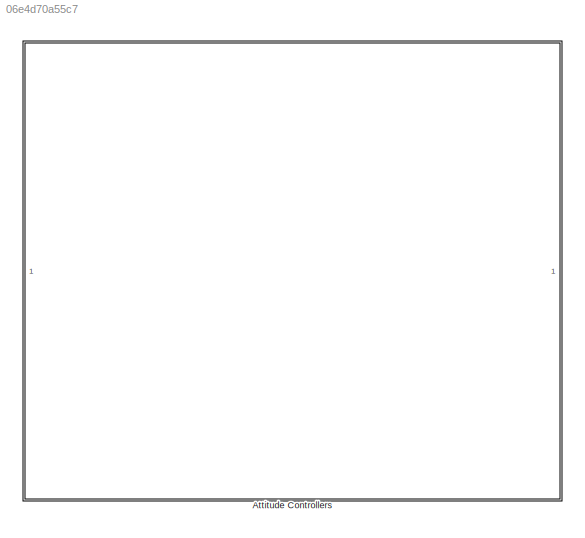
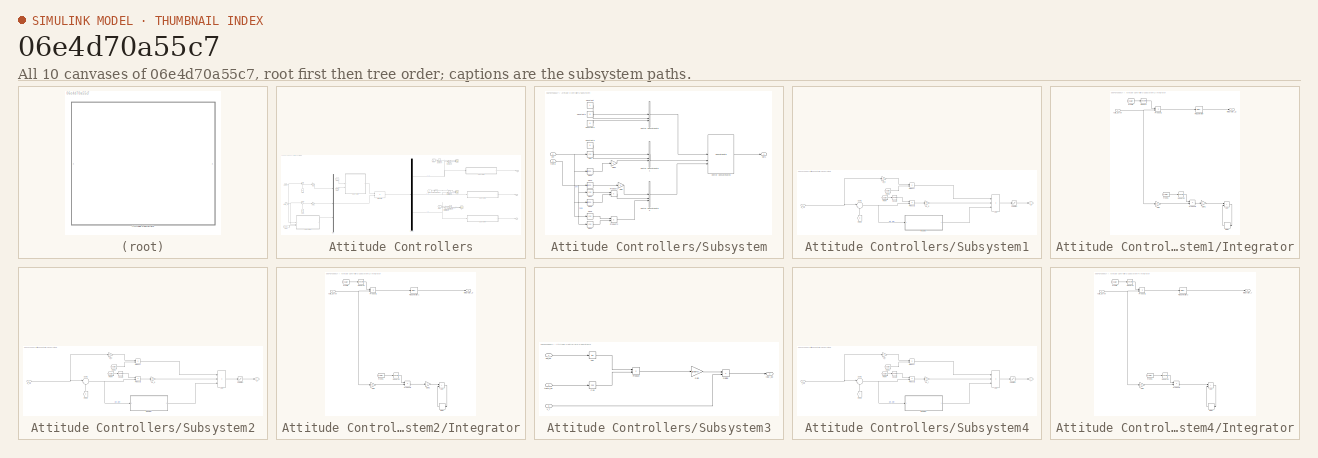
[diagram: thumbnail index - all 10 canvases of the model, root first then tree order]
MODEL slx_06e4d70a55c7
KIND model
CONFIG AbsTol = auto
CONFIG EnableMultiTasking = off
CONFIG FixedStep = auto
CONFIG MaxStep = auto
CONFIG MinStep = auto
CONFIG RelTol = 1e-3
CONFIG SampleTimeConstraint = Unconstrained
CONFIG SolverName = VariableStepAuto
CONFIG StartTime = 0.0
CONFIG StopTime = 10.0
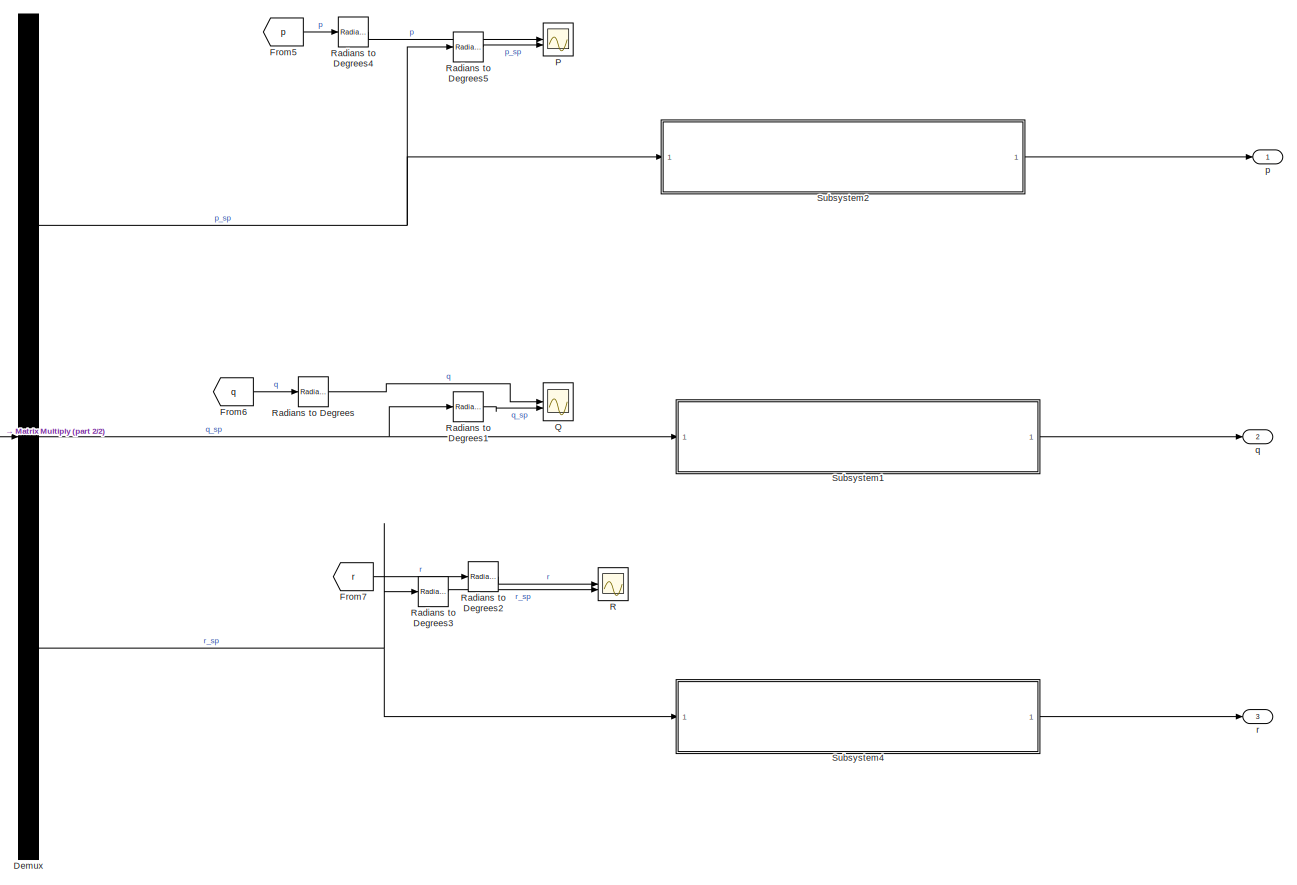
[diagram: Attitude Controllers - part 1/2, right side, full height]
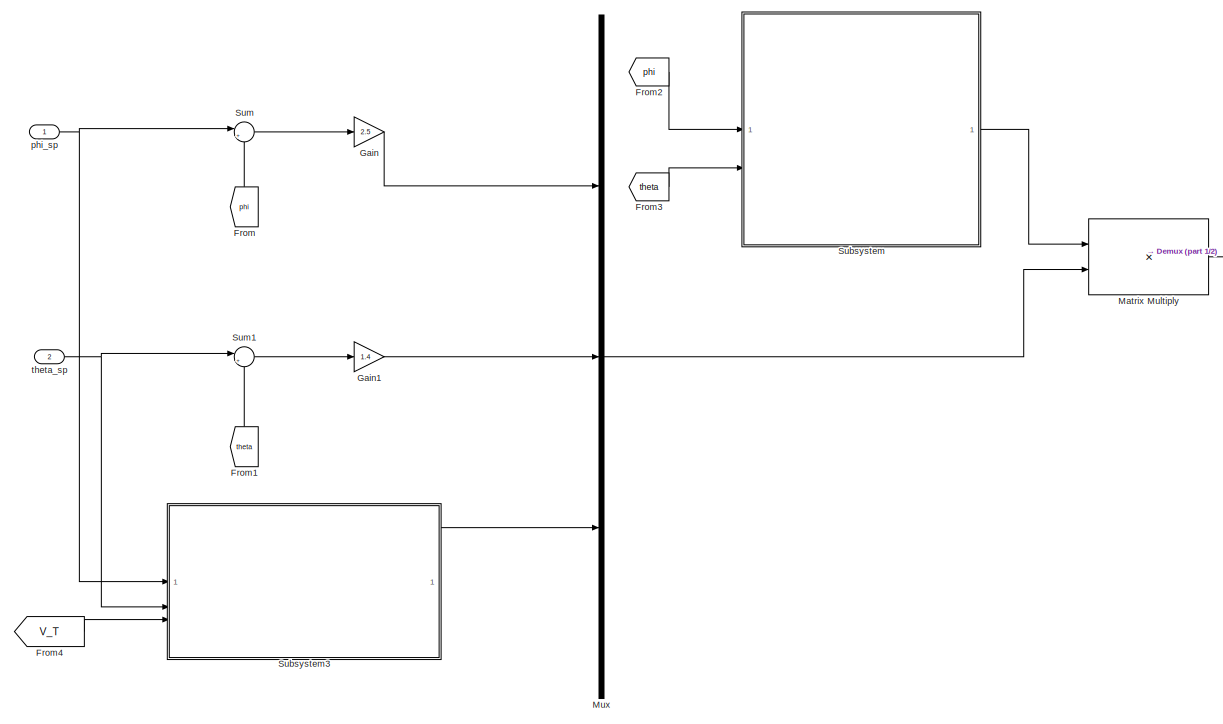
[diagram: Attitude Controllers - part 2/2, left side, full height]
BLOCK [SubSystem] Attitude Controllers
BLOCK [Demux] Attitude Controllers/Demux
  Outputs = 3
BLOCK [From] Attitude Controllers/From
  GotoTag = phi
  NameLocation = right
  TagVisibility = global
BLOCK [From] Attitude Controllers/From1
  GotoTag = theta
  NameLocation = right
  TagVisibility = global
BLOCK [From] Attitude Controllers/From2
  GotoTag = phi
  TagVisibility = global
BLOCK [From] Attitude Controllers/From3
  GotoTag = theta
  TagVisibility = global
BLOCK [From] Attitude Controllers/From4
  GotoTag = V_T
  TagVisibility = global
BLOCK [From] Attitude Controllers/From5
  GotoTag = p
  TagVisibility = global
BLOCK [From] Attitude Controllers/From6
  GotoTag = q
  TagVisibility = global
BLOCK [From] Attitude Controllers/From7
  GotoTag = r
  TagVisibility = global
BLOCK [Gain] Attitude Controllers/Gain
  Gain = 2.5
BLOCK [Gain] Attitude Controllers/Gain1
  Gain = 1.4
BLOCK [Product] Attitude Controllers/Matrix Multiply
  Multiplication = Matrix(*)
BLOCK [Mux] Attitude Controllers/Mux
  DisplayOption = bar
  Inputs = 3
BLOCK [Scope] Attitude Controllers/P
  Floating = off
  NumInputPorts = 2
  ScopeSpecificationString = Simulink.scopes.TimeScopeBlockCfg('CurrentConfiguration', extmgr.ConfigurationSet(extmgr.Configuration('Core','General UI',true,'FigureColor',[1 1 1]),extmgr.Configuration('Core','Source UI',true),extmgr.Configuration('Sources','WiredSimulink',true,'DataLoggingVariableName','ScopeData3'),extmgr.Configuration('Visuals','Time Domain',true,'SerializedDisplays',{struct('MinYLimReal','-1.00000','MaxYLi...<+2327ch>
BLOCK [Scope] Attitude Controllers/Q
  Floating = off
  NumInputPorts = 2
  ScopeSpecificationString = Simulink.scopes.TimeScopeBlockCfg('CurrentConfiguration', extmgr.ConfigurationSet(extmgr.Configuration('Core','General UI',true,'FigureColor',[1 1 1]),extmgr.Configuration('Core','Source UI',true),extmgr.Configuration('Sources','WiredSimulink',true,'DataLoggingVariableName','ScopeData4'),extmgr.Configuration('Visuals','Time Domain',true,'SerializedDisplays',{struct('MinYLimReal','-13.76624','MaxYL...<+2333ch>
BLOCK [Scope] Attitude Controllers/R
  Floating = off
  NumInputPorts = 2
  ScopeSpecificationString = Simulink.scopes.TimeScopeBlockCfg('CurrentConfiguration', extmgr.ConfigurationSet(extmgr.Configuration('Core','General UI',true,'FigureColor',[1 1 1]),extmgr.Configuration('Core','Source UI',true),extmgr.Configuration('Sources','WiredSimulink',true,'DataLoggingVariableName','ScopeData5'),extmgr.Configuration('Visuals','Time Domain',true,'SerializedDisplays',{struct('MinYLimReal','-1.53695','MaxYLi...<+2647ch>
BLOCK [Reference] Attitude Controllers/Radians to Degrees  REF=simulink_extras/Transformations/Radians
to Degrees
  SourceBlock = simulink_extras/Transformations/Radians\nto Degrees
  SourceType = RadiansToDegrees
BLOCK [Reference] Attitude Controllers/Radians to Degrees1  REF=simulink_extras/Transformations/Radians
to Degrees
  SourceBlock = simulink_extras/Transformations/Radians\nto Degrees
  SourceType = RadiansToDegrees
BLOCK [Reference] Attitude Controllers/Radians to Degrees2  REF=simulink_extras/Transformations/Radians
to Degrees
  SourceBlock = simulink_extras/Transformations/Radians\nto Degrees
  SourceType = RadiansToDegrees
BLOCK [Reference] Attitude Controllers/Radians to Degrees3  REF=simulink_extras/Transformations/Radians
to Degrees
  SourceBlock = simulink_extras/Transformations/Radians\nto Degrees
  SourceType = RadiansToDegrees
BLOCK [Reference] Attitude Controllers/Radians to Degrees4  REF=simulink_extras/Transformations/Radians
to Degrees
  SourceBlock = simulink_extras/Transformations/Radians\nto Degrees
  SourceType = RadiansToDegrees
BLOCK [Reference] Attitude Controllers/Radians to Degrees5  REF=simulink_extras/Transformations/Radians
to Degrees
  SourceBlock = simulink_extras/Transformations/Radians\nto Degrees
  SourceType = RadiansToDegrees
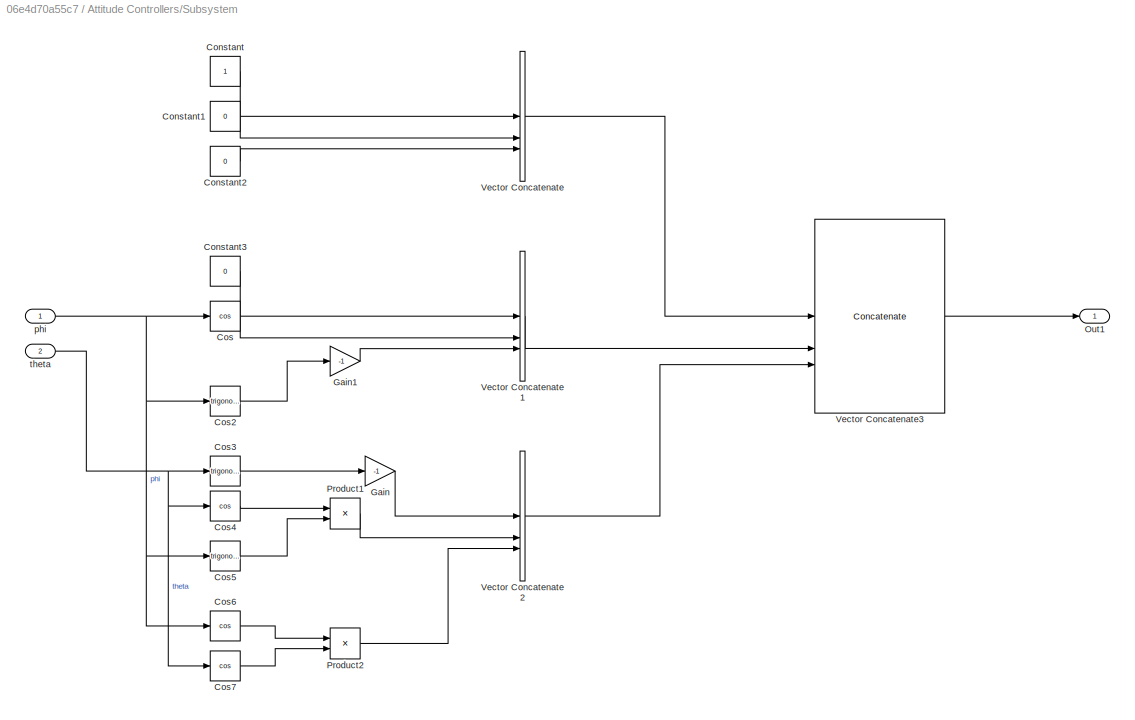
BLOCK [SubSystem] Attitude Controllers/Subsystem
BLOCK [Constant] Attitude Controllers/Subsystem/Constant
BLOCK [Constant] Attitude Controllers/Subsystem/Constant1
  Value = 0
BLOCK [Constant] Attitude Controllers/Subsystem/Constant2
  Value = 0
BLOCK [Constant] Attitude Controllers/Subsystem/Constant3
  Value = 0
BLOCK [Trigonometry] Attitude Controllers/Subsystem/Cos
  Operator = cos
BLOCK [Trigonometry] Attitude Controllers/Subsystem/Cos2
BLOCK [Trigonometry] Attitude Controllers/Subsystem/Cos3
BLOCK [Trigonometry] Attitude Controllers/Subsystem/Cos4
  Operator = cos
BLOCK [Trigonometry] Attitude Controllers/Subsystem/Cos5
BLOCK [Trigonometry] Attitude Controllers/Subsystem/Cos6
  Operator = cos
BLOCK [Trigonometry] Attitude Controllers/Subsystem/Cos7
  Operator = cos
BLOCK [Gain] Attitude Controllers/Subsystem/Gain
  Gain = -1
BLOCK [Gain] Attitude Controllers/Subsystem/Gain1
  Gain = -1
BLOCK [Outport] Attitude Controllers/Subsystem/Out1
BLOCK [Product] Attitude Controllers/Subsystem/Product1
BLOCK [Product] Attitude Controllers/Subsystem/Product2
BLOCK [Concatenate] Attitude Controllers/Subsystem/Vector Concatenate
  NumInputs = 3
BLOCK [Concatenate] Attitude Controllers/Subsystem/Vector Concatenate1
  NumInputs = 3
BLOCK [Concatenate] Attitude Controllers/Subsystem/Vector Concatenate2
  NumInputs = 3
BLOCK [Concatenate] Attitude Controllers/Subsystem/Vector Concatenate3
  ConcatenateDimension = 2
  Mode = Multidimensional array
  NumInputs = 3
BLOCK [Inport] Attitude Controllers/Subsystem/phi
BLOCK [Inport] Attitude Controllers/Subsystem/theta
  Port = 2
BLOCK [SubSystem] Attitude Controllers/Subsystem1
BLOCK [Sum] Attitude Controllers/Subsystem1/Add
  IconShape = rectangular
  Inputs = +++
BLOCK [From] Attitude Controllers/Subsystem1/From2
  GotoTag = q
  NameLocation = right
  TagVisibility = global
BLOCK [From] Attitude Controllers/Subsystem1/From3
  GotoTag = scalar
  TagVisibility = global
BLOCK [From] Attitude Controllers/Subsystem1/From4
  GotoTag = scalar
  TagVisibility = global
BLOCK [SubSystem] Attitude Controllers/Subsystem1/Integrator
BLOCK [Sum] Attitude Controllers/Subsystem1/Integrator/Add
  Commented = on
  IconShape = rectangular
BLOCK [Delay] Attitude Controllers/Subsystem1/Integrator/Delay
  Commented = on
  DelayLength = 1
  InputPortMap = u0
  NameLocation = top
BLOCK [From] Attitude Controllers/Subsystem1/Integrator/From1
  Commented = on
  GotoTag = scalar
  TagVisibility = global
BLOCK [From] Attitude Controllers/Subsystem1/Integrator/From5
  GotoTag = scalar
  TagVisibility = global
BLOCK [Gain] Attitude Controllers/Subsystem1/Integrator/Gain
  Commented = on
  Gain = .02
BLOCK [Gain] Attitude Controllers/Subsystem1/Integrator/Gain1
  Commented = on
  Gain = .1
BLOCK [Outport] Attitude Controllers/Subsystem1/Integrator/Integrator_Q
BLOCK [Reference] Attitude Controllers/Subsystem1/Integrator/PID Controller  REF=slpidlib/PID Controller
  SourceBlock = slpidlib/PID Controller
  SourceType = PID 1dof
BLOCK [Product] Attitude Controllers/Subsystem1/Integrator/Product1
BLOCK [Product] Attitude Controllers/Subsystem1/Integrator/Product2
  Commented = on
BLOCK [Math] Attitude Controllers/Subsystem1/Integrator/Square
  Operator = square
BLOCK [Math] Attitude Controllers/Subsystem1/Integrator/Square2
  Commented = on
  Operator = square
BLOCK [Inport] Attitude Controllers/Subsystem1/Integrator/rate_Error
BLOCK [Gain] Attitude Controllers/Subsystem1/Kff_q
  Gain = 1.3
BLOCK [Gain] Attitude Controllers/Subsystem1/Kp_q
  Gain = 3.5
BLOCK [Product] Attitude Controllers/Subsystem1/Product
BLOCK [Product] Attitude Controllers/Subsystem1/Product2
BLOCK [Saturate] Attitude Controllers/Subsystem1/Saturation
  LowerLimit = -1
  UpperLimit = 1
BLOCK [Math] Attitude Controllers/Subsystem1/Square
  Operator = square
BLOCK [Sum] Attitude Controllers/Subsystem1/Sum2
  Inputs = |+-
BLOCK [Outport] Attitude Controllers/Subsystem1/q
BLOCK [Inport] Attitude Controllers/Subsystem1/q_sp
BLOCK [SubSystem] Attitude Controllers/Subsystem2
BLOCK [Sum] Attitude Controllers/Subsystem2/Add
  IconShape = rectangular
  Inputs = +++
BLOCK [From] Attitude Controllers/Subsystem2/From2
  GotoTag = p
  NameLocation = right
  TagVisibility = global
BLOCK [From] Attitude Controllers/Subsystem2/From3
  GotoTag = scalar
  TagVisibility = global
BLOCK [From] Attitude Controllers/Subsystem2/From4
  GotoTag = scalar
  TagVisibility = global
BLOCK [SubSystem] Attitude Controllers/Subsystem2/Integrator
BLOCK [Sum] Attitude Controllers/Subsystem2/Integrator/Add
  Commented = on
  IconShape = rectangular
BLOCK [Delay] Attitude Controllers/Subsystem2/Integrator/Delay
  Commented = on
  DelayLength = 1
  InputPortMap = u0
  NameLocation = top
BLOCK [From] Attitude Controllers/Subsystem2/Integrator/From1
  Commented = on
  GotoTag = scalar
  TagVisibility = global
BLOCK [From] Attitude Controllers/Subsystem2/Integrator/From5
  GotoTag = scalar
  TagVisibility = global
BLOCK [Gain] Attitude Controllers/Subsystem2/Integrator/Gain
  Commented = on
  Gain = .02
BLOCK [Gain] Attitude Controllers/Subsystem2/Integrator/Gain1
  Commented = on
  Gain = .1
BLOCK [Outport] Attitude Controllers/Subsystem2/Integrator/Integrator_p
BLOCK [Reference] Attitude Controllers/Subsystem2/Integrator/PID Controller1  REF=slpidlib/PID Controller
  SourceBlock = slpidlib/PID Controller
  SourceType = PID 1dof
BLOCK [Product] Attitude Controllers/Subsystem2/Integrator/Product1
BLOCK [Product] Attitude Controllers/Subsystem2/Integrator/Product2
  Commented = on
BLOCK [Math] Attitude Controllers/Subsystem2/Integrator/Square1
  Operator = square
BLOCK [Math] Attitude Controllers/Subsystem2/Integrator/Square2
  Commented = on
  Operator = square
BLOCK [Inport] Attitude Controllers/Subsystem2/Integrator/rate_Error
BLOCK [Gain] Attitude Controllers/Subsystem2/Kff_p
  Gain = 0.1
BLOCK [Gain] Attitude Controllers/Subsystem2/Kp_p
  Gain = .18
BLOCK [Product] Attitude Controllers/Subsystem2/Product
BLOCK [Product] Attitude Controllers/Subsystem2/Product2
BLOCK [Saturate] Attitude Controllers/Subsystem2/Saturation
  LowerLimit = -1
  UpperLimit = 1
BLOCK [Math] Attitude Controllers/Subsystem2/Square
  Operator = square
BLOCK [Sum] Attitude Controllers/Subsystem2/Sum2
  Inputs = |+-
BLOCK [Outport] Attitude Controllers/Subsystem2/p
BLOCK [Inport] Attitude Controllers/Subsystem2/p_sp
BLOCK [SubSystem] Attitude Controllers/Subsystem3
BLOCK [Trigonometry] Attitude Controllers/Subsystem3/Cos
  Operator = cos
BLOCK [Product] Attitude Controllers/Subsystem3/Divide
  Inputs = */
BLOCK [Gain] Attitude Controllers/Subsystem3/Gain
  Gain = gravity
BLOCK [Product] Attitude Controllers/Subsystem3/Product
BLOCK [Trigonometry] Attitude Controllers/Subsystem3/Tan
  Operator = tan
BLOCK [Inport] Attitude Controllers/Subsystem3/phi_sp
BLOCK [Inport] Attitude Controllers/Subsystem3/theta_sp
  Port = 2
BLOCK [Inport] Attitude Controllers/Subsystem3/v_T
  Port = 3
BLOCK [Outport] Attitude Controllers/Subsystem3/yaw_sp
BLOCK [SubSystem] Attitude Controllers/Subsystem4
BLOCK [Sum] Attitude Controllers/Subsystem4/Add
  IconShape = rectangular
  Inputs = +++
BLOCK [From] Attitude Controllers/Subsystem4/From2
  GotoTag = r
  NameLocation = right
  TagVisibility = global
BLOCK [From] Attitude Controllers/Subsystem4/From3
  GotoTag = scalar
  TagVisibility = global
BLOCK [From] Attitude Controllers/Subsystem4/From4
  GotoTag = scalar
  TagVisibility = global
BLOCK [SubSystem] Attitude Controllers/Subsystem4/Integrator
BLOCK [Sum] Attitude Controllers/Subsystem4/Integrator/Add
  Commented = on
  IconShape = rectangular
BLOCK [Delay] Attitude Controllers/Subsystem4/Integrator/Delay
  Commented = on
  DelayLength = 1
  InputPortMap = u0
  NameLocation = top
BLOCK [From] Attitude Controllers/Subsystem4/Integrator/From1
  Commented = on
  GotoTag = scalar
BLOCK [From] Attitude Controllers/Subsystem4/Integrator/From5
  GotoTag = scalar
  TagVisibility = global
BLOCK [Gain] Attitude Controllers/Subsystem4/Integrator/Gain
  Commented = on
  Gain = .02
BLOCK [Outport] Attitude Controllers/Subsystem4/Integrator/Integrator_r
BLOCK [Reference] Attitude Controllers/Subsystem4/Integrator/PID Controller2  REF=slpidlib/PID Controller
  SourceBlock = slpidlib/PID Controller
  SourceType = PID 1dof
BLOCK [Product] Attitude Controllers/Subsystem4/Integrator/Product1
BLOCK [Product] Attitude Controllers/Subsystem4/Integrator/Product2
  Commented = on
BLOCK [Math] Attitude Controllers/Subsystem4/Integrator/Square1
  Operator = square
BLOCK [Math] Attitude Controllers/Subsystem4/Integrator/Square2
  Commented = on
  Operator = square
BLOCK [Inport] Attitude Controllers/Subsystem4/Integrator/rate_Error
BLOCK [Gain] Attitude Controllers/Subsystem4/Kff_r
  Gain = 0
BLOCK [Gain] Attitude Controllers/Subsystem4/Kp_r
  Gain = .01
BLOCK [Product] Attitude Controllers/Subsystem4/Product
BLOCK [Product] Attitude Controllers/Subsystem4/Product2
BLOCK [Saturate] Attitude Controllers/Subsystem4/Saturation
  LowerLimit = -1
  UpperLimit = 1
BLOCK [Math] Attitude Controllers/Subsystem4/Square
  Operator = square
BLOCK [Sum] Attitude Controllers/Subsystem4/Sum2
  Inputs = |+-
BLOCK [Outport] Attitude Controllers/Subsystem4/r
BLOCK [Inport] Attitude Controllers/Subsystem4/r_sp
BLOCK [Sum] Attitude Controllers/Sum
  Inputs = |+-
BLOCK [Sum] Attitude Controllers/Sum1
  Inputs = |+-
BLOCK [Outport] Attitude Controllers/p
BLOCK [Inport] Attitude Controllers/phi_sp
BLOCK [Outport] Attitude Controllers/q
  Port = 2
BLOCK [Outport] Attitude Controllers/r
  Port = 3
BLOCK [Inport] Attitude Controllers/theta_sp
  Port = 2
NET Attitude Controllers/Demux:1 -> Attitude Controllers/Radians to Degrees5:1, Attitude Controllers/Subsystem2:1
NET Attitude Controllers/Demux:2 -> Attitude Controllers/Radians to Degrees1:1, Attitude Controllers/Subsystem1:1
NET Attitude Controllers/Demux:3 -> Attitude Controllers/Radians to Degrees3:1, Attitude Controllers/Subsystem4:1
LINE Attitude Controllers/From1:1 -> Attitude Controllers/Sum1:2
LINE Attitude Controllers/From2:1 -> Attitude Controllers/Subsystem:1
LINE Attitude Controllers/From3:1 -> Attitude Controllers/Subsystem:2
LINE Attitude Controllers/From4:1 -> Attitude Controllers/Subsystem3:3
LINE Attitude Controllers/From5:1 -> Attitude Controllers/Radians to Degrees4:1
LINE Attitude Controllers/From6:1 -> Attitude Controllers/Radians to Degrees:1
LINE Attitude Controllers/From7:1 -> Attitude Controllers/Radians to Degrees2:1
LINE Attitude Controllers/From:1 -> Attitude Controllers/Sum:2
LINE Attitude Controllers/Gain1:1 -> Attitude Controllers/Mux:2
LINE Attitude Controllers/Gain:1 -> Attitude Controllers/Mux:1
LINE Attitude Controllers/Matrix Multiply:1 -> Attitude Controllers/Demux:1
LINE Attitude Controllers/Mux:1 -> Attitude Controllers/Matrix Multiply:2
LINE Attitude Controllers/Radians to Degrees1:1 -> Attitude Controllers/Q:2
LINE Attitude Controllers/Radians to Degrees2:1 -> Attitude Controllers/R:1
LINE Attitude Controllers/Radians to Degrees3:1 -> Attitude Controllers/R:2
LINE Attitude Controllers/Radians to Degrees4:1 -> Attitude Controllers/P:1
LINE Attitude Controllers/Radians to Degrees5:1 -> Attitude Controllers/P:2
LINE Attitude Controllers/Radians to Degrees:1 -> Attitude Controllers/Q:1
LINE Attitude Controllers/Subsystem/Constant1:1 -> Attitude Controllers/Subsystem/Vector Concatenate:2
LINE Attitude Controllers/Subsystem/Constant2:1 -> Attitude Controllers/Subsystem/Vector Concatenate:3
LINE Attitude Controllers/Subsystem/Constant3:1 -> Attitude Controllers/Subsystem/Vector Concatenate1:1
LINE Attitude Controllers/Subsystem/Constant:1 -> Attitude Controllers/Subsystem/Vector Concatenate:1
LINE Attitude Controllers/Subsystem/Cos2:1 -> Attitude Controllers/Subsystem/Gain1:1
LINE Attitude Controllers/Subsystem/Cos3:1 -> Attitude Controllers/Subsystem/Gain:1
LINE Attitude Controllers/Subsystem/Cos4:1 -> Attitude Controllers/Subsystem/Product1:1
LINE Attitude Controllers/Subsystem/Cos5:1 -> Attitude Controllers/Subsystem/Product1:2
LINE Attitude Controllers/Subsystem/Cos6:1 -> Attitude Controllers/Subsystem/Product2:1
LINE Attitude Controllers/Subsystem/Cos7:1 -> Attitude Controllers/Subsystem/Product2:2
LINE Attitude Controllers/Subsystem/Cos:1 -> Attitude Controllers/Subsystem/Vector Concatenate1:2
LINE Attitude Controllers/Subsystem/Gain1:1 -> Attitude Controllers/Subsystem/Vector Concatenate1:3
LINE Attitude Controllers/Subsystem/Gain:1 -> Attitude Controllers/Subsystem/Vector Concatenate2:1
LINE Attitude Controllers/Subsystem/Product1:1 -> Attitude Controllers/Subsystem/Vector Concatenate2:2
LINE Attitude Controllers/Subsystem/Product2:1 -> Attitude Controllers/Subsystem/Vector Concatenate2:3
LINE Attitude Controllers/Subsystem/Vector Concatenate1:1 -> Attitude Controllers/Subsystem/Vector Concatenate3:2
LINE Attitude Controllers/Subsystem/Vector Concatenate2:1 -> Attitude Controllers/Subsystem/Vector Concatenate3:3
LINE Attitude Controllers/Subsystem/Vector Concatenate3:1 -> Attitude Controllers/Subsystem/Out1:1
LINE Attitude Controllers/Subsystem/Vector Concatenate:1 -> Attitude Controllers/Subsystem/Vector Concatenate3:1
NET Attitude Controllers/Subsystem/phi:1 -> Attitude Controllers/Subsystem/Cos2:1, Attitude Controllers/Subsystem/Cos5:1, Attitude Controllers/Subsystem/Cos6:1, Attitude Controllers/Subsystem/Cos:1
NET Attitude Controllers/Subsystem/theta:1 -> Attitude Controllers/Subsystem/Cos3:1, Attitude Controllers/Subsystem/Cos4:1, Attitude Controllers/Subsystem/Cos7:1
LINE Attitude Controllers/Subsystem1/Add:1 -> Attitude Controllers/Subsystem1/Saturation:1
LINE Attitude Controllers/Subsystem1/From2:1 -> Attitude Controllers/Subsystem1/Sum2:2
LINE Attitude Controllers/Subsystem1/From3:1 -> Attitude Controllers/Subsystem1/Product:2
LINE Attitude Controllers/Subsystem1/From4:1 -> Attitude Controllers/Subsystem1/Square:1
LINE Attitude Controllers/Subsystem1/Integrator/Add:1 -> Attitude Controllers/Subsystem1/Integrator/Delay:1
LINE Attitude Controllers/Subsystem1/Integrator/Delay:1 -> Attitude Controllers/Subsystem1/Integrator/Add:2
LINE Attitude Controllers/Subsystem1/Integrator/From1:1 -> Attitude Controllers/Subsystem1/Integrator/Square2:1
LINE Attitude Controllers/Subsystem1/Integrator/From5:1 -> Attitude Controllers/Subsystem1/Integrator/Square:1
LINE Attitude Controllers/Subsystem1/Integrator/Gain1:1 -> Attitude Controllers/Subsystem1/Integrator/Add:1
LINE Attitude Controllers/Subsystem1/Integrator/Gain:1 -> Attitude Controllers/Subsystem1/Integrator/Product2:2
LINE Attitude Controllers/Subsystem1/Integrator/PID Controller:1 -> Attitude Controllers/Subsystem1/Integrator/Integrator_Q:1
LINE Attitude Controllers/Subsystem1/Integrator/Product1:1 -> Attitude Controllers/Subsystem1/Integrator/PID Controller:1
LINE Attitude Controllers/Subsystem1/Integrator/Product2:1 -> Attitude Controllers/Subsystem1/Integrator/Gain1:1
LINE Attitude Controllers/Subsystem1/Integrator/Square2:1 -> Attitude Controllers/Subsystem1/Integrator/Product2:1
LINE Attitude Controllers/Subsystem1/Integrator/Square:1 -> Attitude Controllers/Subsystem1/Integrator/Product1:1
NET Attitude Controllers/Subsystem1/Integrator/rate_Error:1 -> Attitude Controllers/Subsystem1/Integrator/Gain:1, Attitude Controllers/Subsystem1/Integrator/Product1:2
LINE Attitude Controllers/Subsystem1/Integrator:1 -> Attitude Controllers/Subsystem1/Add:3
LINE Attitude Controllers/Subsystem1/Kff_q:1 -> Attitude Controllers/Subsystem1/Product:1
LINE Attitude Controllers/Subsystem1/Kp_q:1 -> Attitude Controllers/Subsystem1/Add:2
LINE Attitude Controllers/Subsystem1/Product2:1 -> Attitude Controllers/Subsystem1/Kp_q:1
LINE Attitude Controllers/Subsystem1/Product:1 -> Attitude Controllers/Subsystem1/Add:1
LINE Attitude Controllers/Subsystem1/Saturation:1 -> Attitude Controllers/Subsystem1/q:1
LINE Attitude Controllers/Subsystem1/Square:1 -> Attitude Controllers/Subsystem1/Product2:1
NET Attitude Controllers/Subsystem1/Sum2:1 -> Attitude Controllers/Subsystem1/Integrator:1, Attitude Controllers/Subsystem1/Product2:2
NET Attitude Controllers/Subsystem1/q_sp:1 -> Attitude Controllers/Subsystem1/Kff_q:1, Attitude Controllers/Subsystem1/Sum2:1
LINE Attitude Controllers/Subsystem1:1 -> Attitude Controllers/q:1
LINE Attitude Controllers/Subsystem2/Add:1 -> Attitude Controllers/Subsystem2/Saturation:1
LINE Attitude Controllers/Subsystem2/From2:1 -> Attitude Controllers/Subsystem2/Sum2:2
LINE Attitude Controllers/Subsystem2/From3:1 -> Attitude Controllers/Subsystem2/Product:2
LINE Attitude Controllers/Subsystem2/From4:1 -> Attitude Controllers/Subsystem2/Square:1
LINE Attitude Controllers/Subsystem2/Integrator/Add:1 -> Attitude Controllers/Subsystem2/Integrator/Delay:1
LINE Attitude Controllers/Subsystem2/Integrator/Delay:1 -> Attitude Controllers/Subsystem2/Integrator/Add:2
LINE Attitude Controllers/Subsystem2/Integrator/From1:1 -> Attitude Controllers/Subsystem2/Integrator/Square2:1
LINE Attitude Controllers/Subsystem2/Integrator/From5:1 -> Attitude Controllers/Subsystem2/Integrator/Square1:1
LINE Attitude Controllers/Subsystem2/Integrator/Gain1:1 -> Attitude Controllers/Subsystem2/Integrator/Add:1
LINE Attitude Controllers/Subsystem2/Integrator/Gain:1 -> Attitude Controllers/Subsystem2/Integrator/Product2:2
LINE Attitude Controllers/Subsystem2/Integrator/PID Controller1:1 -> Attitude Controllers/Subsystem2/Integrator/Integrator_p:1
LINE Attitude Controllers/Subsystem2/Integrator/Product1:1 -> Attitude Controllers/Subsystem2/Integrator/PID Controller1:1
LINE Attitude Controllers/Subsystem2/Integrator/Product2:1 -> Attitude Controllers/Subsystem2/Integrator/Gain1:1
LINE Attitude Controllers/Subsystem2/Integrator/Square1:1 -> Attitude Controllers/Subsystem2/Integrator/Product1:1
LINE Attitude Controllers/Subsystem2/Integrator/Square2:1 -> Attitude Controllers/Subsystem2/Integrator/Product2:1
NET Attitude Controllers/Subsystem2/Integrator/rate_Error:1 -> Attitude Controllers/Subsystem2/Integrator/Gain:1, Attitude Controllers/Subsystem2/Integrator/Product1:2
LINE Attitude Controllers/Subsystem2/Integrator:1 -> Attitude Controllers/Subsystem2/Add:3
LINE Attitude Controllers/Subsystem2/Kff_p:1 -> Attitude Controllers/Subsystem2/Product:1
LINE Attitude Controllers/Subsystem2/Kp_p:1 -> Attitude Controllers/Subsystem2/Add:2
LINE Attitude Controllers/Subsystem2/Product2:1 -> Attitude Controllers/Subsystem2/Kp_p:1
LINE Attitude Controllers/Subsystem2/Product:1 -> Attitude Controllers/Subsystem2/Add:1
LINE Attitude Controllers/Subsystem2/Saturation:1 -> Attitude Controllers/Subsystem2/p:1
LINE Attitude Controllers/Subsystem2/Square:1 -> Attitude Controllers/Subsystem2/Product2:1
NET Attitude Controllers/Subsystem2/Sum2:1 -> Attitude Controllers/Subsystem2/Integrator:1, Attitude Controllers/Subsystem2/Product2:2
NET Attitude Controllers/Subsystem2/p_sp:1 -> Attitude Controllers/Subsystem2/Kff_p:1, Attitude Controllers/Subsystem2/Sum2:1
LINE Attitude Controllers/Subsystem2:1 -> Attitude Controllers/p:1
LINE Attitude Controllers/Subsystem3/Cos:1 -> Attitude Controllers/Subsystem3/Product:2
LINE Attitude Controllers/Subsystem3/Divide:1 -> Attitude Controllers/Subsystem3/yaw_sp:1
LINE Attitude Controllers/Subsystem3/Gain:1 -> Attitude Controllers/Subsystem3/Divide:1
LINE Attitude Controllers/Subsystem3/Product:1 -> Attitude Controllers/Subsystem3/Gain:1
LINE Attitude Controllers/Subsystem3/Tan:1 -> Attitude Controllers/Subsystem3/Product:1
LINE Attitude Controllers/Subsystem3/phi_sp:1 -> Attitude Controllers/Subsystem3/Tan:1
LINE Attitude Controllers/Subsystem3/theta_sp:1 -> Attitude Controllers/Subsystem3/Cos:1
LINE Attitude Controllers/Subsystem3/v_T:1 -> Attitude Controllers/Subsystem3/Divide:2
LINE Attitude Controllers/Subsystem3:1 -> Attitude Controllers/Mux:3
LINE Attitude Controllers/Subsystem4/Add:1 -> Attitude Controllers/Subsystem4/Saturation:1
LINE Attitude Controllers/Subsystem4/From2:1 -> Attitude Controllers/Subsystem4/Sum2:2
LINE Attitude Controllers/Subsystem4/From3:1 -> Attitude Controllers/Subsystem4/Product:2
LINE Attitude Controllers/Subsystem4/From4:1 -> Attitude Controllers/Subsystem4/Square:1
LINE Attitude Controllers/Subsystem4/Integrator/Add:1 -> Attitude Controllers/Subsystem4/Integrator/Delay:1
LINE Attitude Controllers/Subsystem4/Integrator/Delay:1 -> Attitude Controllers/Subsystem4/Integrator/Add:2
LINE Attitude Controllers/Subsystem4/Integrator/From1:1 -> Attitude Controllers/Subsystem4/Integrator/Square2:1
LINE Attitude Controllers/Subsystem4/Integrator/From5:1 -> Attitude Controllers/Subsystem4/Integrator/Square1:1
LINE Attitude Controllers/Subsystem4/Integrator/Gain:1 -> Attitude Controllers/Subsystem4/Integrator/Product2:2
LINE Attitude Controllers/Subsystem4/Integrator/PID Controller2:1 -> Attitude Controllers/Subsystem4/Integrator/Integrator_r:1
LINE Attitude Controllers/Subsystem4/Integrator/Product1:1 -> Attitude Controllers/Subsystem4/Integrator/PID Controller2:1
LINE Attitude Controllers/Subsystem4/Integrator/Product2:1 -> Attitude Controllers/Subsystem4/Integrator/Add:1
LINE Attitude Controllers/Subsystem4/Integrator/Square1:1 -> Attitude Controllers/Subsystem4/Integrator/Product1:1
LINE Attitude Controllers/Subsystem4/Integrator/Square2:1 -> Attitude Controllers/Subsystem4/Integrator/Product2:1
NET Attitude Controllers/Subsystem4/Integrator/rate_Error:1 -> Attitude Controllers/Subsystem4/Integrator/Gain:1, Attitude Controllers/Subsystem4/Integrator/Product1:2
LINE Attitude Controllers/Subsystem4/Integrator:1 -> Attitude Controllers/Subsystem4/Add:3
LINE Attitude Controllers/Subsystem4/Kff_r:1 -> Attitude Controllers/Subsystem4/Product:1
LINE Attitude Controllers/Subsystem4/Kp_r:1 -> Attitude Controllers/Subsystem4/Add:2
LINE Attitude Controllers/Subsystem4/Product2:1 -> Attitude Controllers/Subsystem4/Kp_r:1
LINE Attitude Controllers/Subsystem4/Product:1 -> Attitude Controllers/Subsystem4/Add:1
LINE Attitude Controllers/Subsystem4/Saturation:1 -> Attitude Controllers/Subsystem4/r:1
LINE Attitude Controllers/Subsystem4/Square:1 -> Attitude Controllers/Subsystem4/Product2:1
NET Attitude Controllers/Subsystem4/Sum2:1 -> Attitude Controllers/Subsystem4/Integrator:1, Attitude Controllers/Subsystem4/Product2:2
NET Attitude Controllers/Subsystem4/r_sp:1 -> Attitude Controllers/Subsystem4/Kff_r:1, Attitude Controllers/Subsystem4/Sum2:1
LINE Attitude Controllers/Subsystem4:1 -> Attitude Controllers/r:1
LINE Attitude Controllers/Subsystem:1 -> Attitude Controllers/Matrix Multiply:1
LINE Attitude Controllers/Sum1:1 -> Attitude Controllers/Gain1:1
LINE Attitude Controllers/Sum:1 -> Attitude Controllers/Gain:1
NET Attitude Controllers/phi_sp:1 -> Attitude Controllers/Subsystem3:1, Attitude Controllers/Sum:1
NET Attitude Controllers/theta_sp:1 -> Attitude Controllers/Subsystem3:2, Attitude Controllers/Sum1:1
note: NET lines group one-source signal fan-out (src -> all destinations, sorted); 1:1 wires keep LINE
